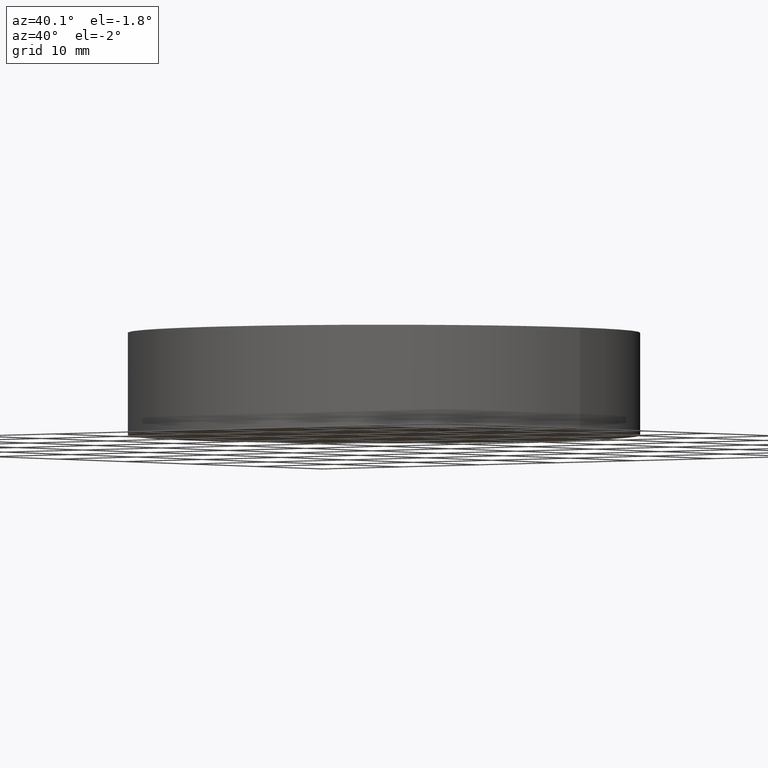
[diagram: clean part render]
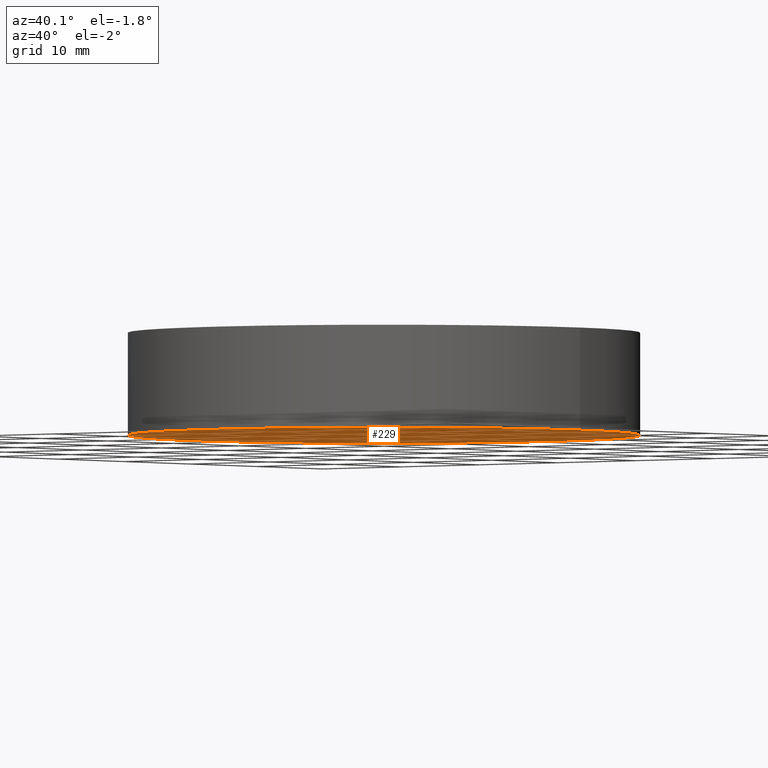
[diagram: same view with one face highlighted and labeled with its STEP entity id]
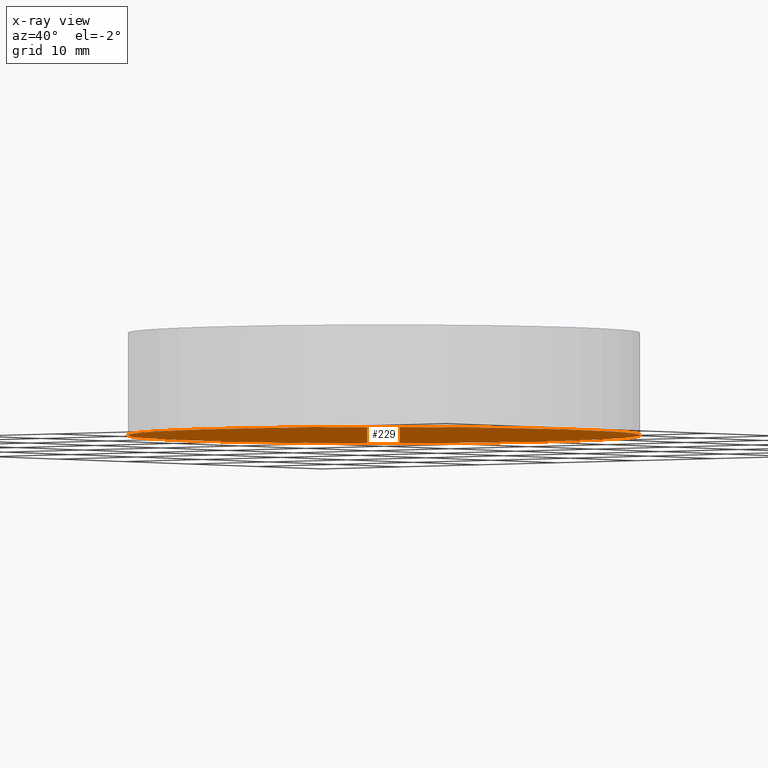
[diagram: x-ray of the same camera — body ghosted, the highlighted face saturated]
A machine part, auxiliary view. The second image highlights one B-rep face of the part: STEP entity #229.
The next image is the same camera in x-ray: the body ghosted, the highlighted face saturated — about 0% of this face is hidden behind the body in this view.
In plain terms, the highlighted planar face has unit normal (0, 0, 1).
Its self-contained STEP definition (entity closure, byte-faithful):
#11 = EDGE_CURVE ( 'NONE', #81, #216, #66, .T. ) ;
#18 = ORIENTED_EDGE ( 'NONE', *, *, #11, .F. ) ;
#26 = PLANE ( 'NONE',  #179 ) ;
#28 = CARTESIAN_POINT ( 'NONE',  ( 0.0000000000000000000, 0.0000000000000000000, 0.0000000000000000000 ) ) ;
#43 = EDGE_CURVE ( 'NONE', #216, #81, #71, .T. ) ;
#53 = AXIS2_PLACEMENT_3D ( 'NONE', #28, #172, #114 ) ;
#66 = CIRCLE ( 'NONE', #53, 25.00000000000000000 ) ;
#69 = DIRECTION ( 'NONE',  ( 0.0000000000000000000, 0.0000000000000000000, 1.000000000000000000 ) ) ;
#71 = CIRCLE ( 'NONE', #199, 25.00000000000000000 ) ;
#76 = ORIENTED_EDGE ( 'NONE', *, *, #43, .F. ) ;
#81 = VERTEX_POINT ( 'NONE', #156 ) ;
#95 = CARTESIAN_POINT ( 'NONE',  ( 0.0000000000000000000, 0.0000000000000000000, 0.0000000000000000000 ) ) ;
#111 = CARTESIAN_POINT ( 'NONE',  ( 0.0000000000000000000, 0.0000000000000000000, 0.0000000000000000000 ) ) ;
#114 = DIRECTION ( 'NONE',  ( 1.000000000000000000, 0.0000000000000000000, 0.0000000000000000000 ) ) ;
#118 = DIRECTION ( 'NONE',  ( 0.0000000000000000000, 0.0000000000000000000, 1.000000000000000000 ) ) ;
#154 = DIRECTION ( 'NONE',  ( 1.000000000000000000, 0.0000000000000000000, -0.0000000000000000000 ) ) ;
#156 = CARTESIAN_POINT ( 'NONE',  ( -25.00000000000000000, 0.0000000000000000000, 0.0000000000000000000 ) ) ;
#172 = DIRECTION ( 'NONE',  ( 0.0000000000000000000, 0.0000000000000000000, 1.000000000000000000 ) ) ;
#178 = EDGE_LOOP ( 'NONE', ( #18, #76 ) ) ;
#179 = AXIS2_PLACEMENT_3D ( 'NONE', #95, #118, #154 ) ;
#187 = CARTESIAN_POINT ( 'NONE',  ( 25.00000000000000000, 3.061616997868383000E-015, 0.0000000000000000000 ) ) ;
#199 = AXIS2_PLACEMENT_3D ( 'NONE', #111, #69, #208 ) ;
#208 = DIRECTION ( 'NONE',  ( 1.000000000000000000, 0.0000000000000000000, 0.0000000000000000000 ) ) ;
#216 = VERTEX_POINT ( 'NONE', #187 ) ;
#223 = FACE_OUTER_BOUND ( 'NONE', #178, .T. ) ;
#229 = ADVANCED_FACE ( 'NONE', ( #223 ), #26, .F. ) ;